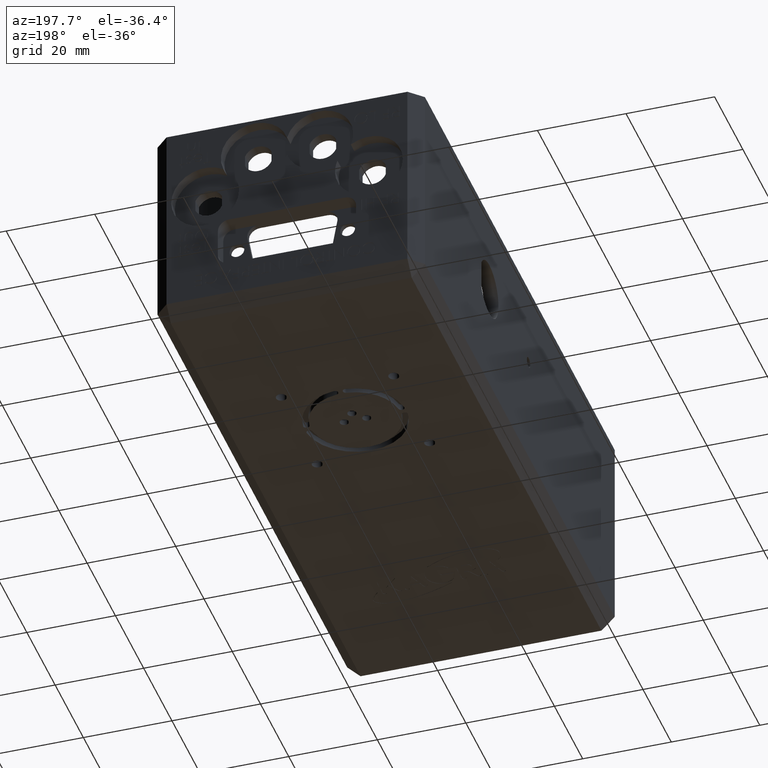
[diagram: clean part render]
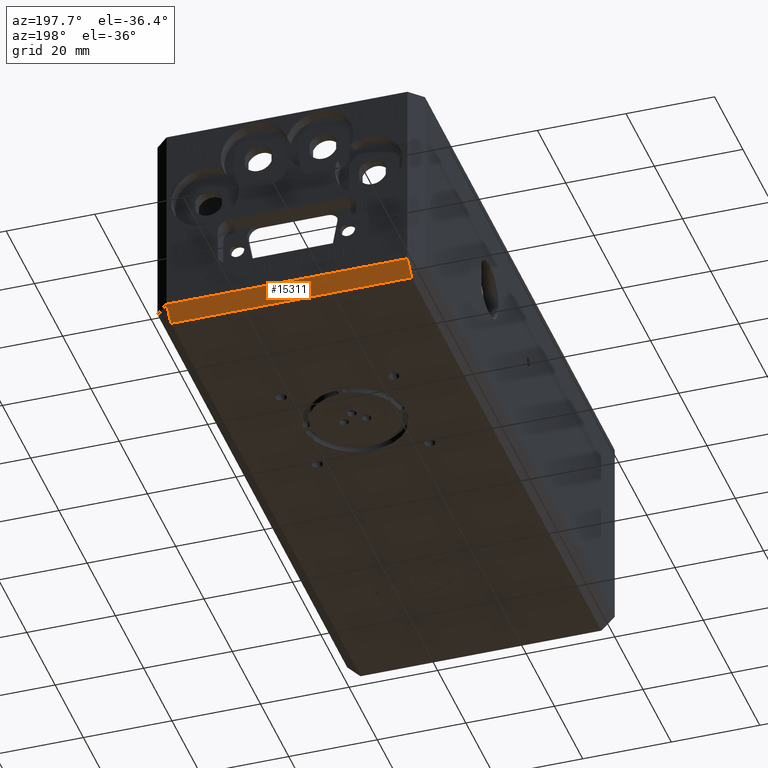
[diagram: same view with one face highlighted and labeled with its STEP entity id]
A machine part, auxiliary view. The second image highlights one B-rep face of the part: STEP entity #15311.
In plain terms, the highlighted planar face has unit normal (-0, 0.7071, -0.7071).
Its self-contained STEP definition (entity closure, byte-faithful):
#350 = CARTESIAN_POINT ( 'NONE',  ( 57.39999999999995600, 135.8000000000000100, -46.09999999999999400 ) ) ;
#2061 = CARTESIAN_POINT ( 'NONE',  ( -6.171479809898947600E-014, 134.2999999999999800, -47.60000000000000100 ) ) ;
#2699 = ORIENTED_EDGE ( 'NONE', *, *, #21399, .F. ) ;
#3298 = LINE ( 'NONE', #28449, #20566 ) ;
#3628 = DIRECTION ( 'NONE',  ( 3.365184701171224500E-015, 0.7071067811865459100, 0.7071067811865491300 ) ) ;
#6221 = CARTESIAN_POINT ( 'NONE',  ( 3.000000000000017800, 134.2999999999999800, -47.60000000000000100 ) ) ;
#7634 = LINE ( 'NONE', #350, #23832 ) ;
#8904 = LINE ( 'NONE', #35652, #33725 ) ;
#9048 = DIRECTION ( 'NONE',  ( 1.922962686383550500E-016, 0.7071067811865460200, 0.7071067811865490200 ) ) ;
#11221 = VERTEX_POINT ( 'NONE', #35826 ) ;
#12793 = CARTESIAN_POINT ( 'NONE',  ( 57.39999999999994900, 134.3000000000000100, -47.60000000000000100 ) ) ;
#13709 = VECTOR ( 'NONE', #28703, 1000.000000000000000 ) ;
#15311 = ADVANCED_FACE ( 'NONE', ( #36543 ), #31248, .T. ) ;
#16563 = ORIENTED_EDGE ( 'NONE', *, *, #17520, .F. ) ;
#17520 = EDGE_CURVE ( 'NONE', #39810, #40697, #40553, .T. ) ;
#18410 = DIRECTION ( 'NONE',  ( -3.249363532044245600E-016, 0.7071067811865491300, -0.7071067811865459100 ) ) ;
#19193 = ORIENTED_EDGE ( 'NONE', *, *, #33662, .F. ) ;
#20566 = VECTOR ( 'NONE', #9048, 1000.000000000000100 ) ;
#20857 = EDGE_LOOP ( 'NONE', ( #32022, #2699, #19193, #16563 ) ) ;
#21261 = EDGE_CURVE ( 'NONE', #39810, #11221, #3298, .T. ) ;
#21399 = EDGE_CURVE ( 'NONE', #28567, #11221, #8904, .T. ) ;
#23759 = AXIS2_PLACEMENT_3D ( 'NONE', #2061, #18410, #41021 ) ;
#23832 = VECTOR ( 'NONE', #3628, 1000.000000000000000 ) ;
#28449 = CARTESIAN_POINT ( 'NONE',  ( 3.000000000000019100, 134.2999999999999800, -47.60000000000000100 ) ) ;
#28567 = VERTEX_POINT ( 'NONE', #31574 ) ;
#28703 = DIRECTION ( 'NONE',  ( 1.000000000000000000, 4.595293976097504800E-016, 0.0000000000000000000 ) ) ;
#31248 = PLANE ( 'NONE',  #23759 ) ;
#31574 = CARTESIAN_POINT ( 'NONE',  ( 57.39999999999996300, 137.3000000000000100, -44.59999999999998700 ) ) ;
#32022 = ORIENTED_EDGE ( 'NONE', *, *, #21261, .T. ) ;
#33662 = EDGE_CURVE ( 'NONE', #40697, #28567, #7634, .T. ) ;
#33725 = VECTOR ( 'NONE', #38878, 1000.000000000000000 ) ;
#35219 = CARTESIAN_POINT ( 'NONE',  ( 60.39999999999998400, 134.3000000000000100, -47.60000000000000100 ) ) ;
#35652 = CARTESIAN_POINT ( 'NONE',  ( -1.925929944387235900E-031, 137.2999999999999800, -44.59999999999998700 ) ) ;
#35826 = CARTESIAN_POINT ( 'NONE',  ( 3.000000000000017800, 137.2999999999999800, -44.59999999999998700 ) ) ;
#36543 = FACE_OUTER_BOUND ( 'NONE', #20857, .T. ) ;
#38878 = DIRECTION ( 'NONE',  ( -1.000000000000000000, -4.595293976097504800E-016, 0.0000000000000000000 ) ) ;
#39810 = VERTEX_POINT ( 'NONE', #6221 ) ;
#40553 = LINE ( 'NONE', #35219, #13709 ) ;
#40697 = VERTEX_POINT ( 'NONE', #12793 ) ;
#41021 = DIRECTION ( 'NONE',  ( -1.000000000000000000, -4.595293976097504800E-016, 0.0000000000000000000 ) ) ;